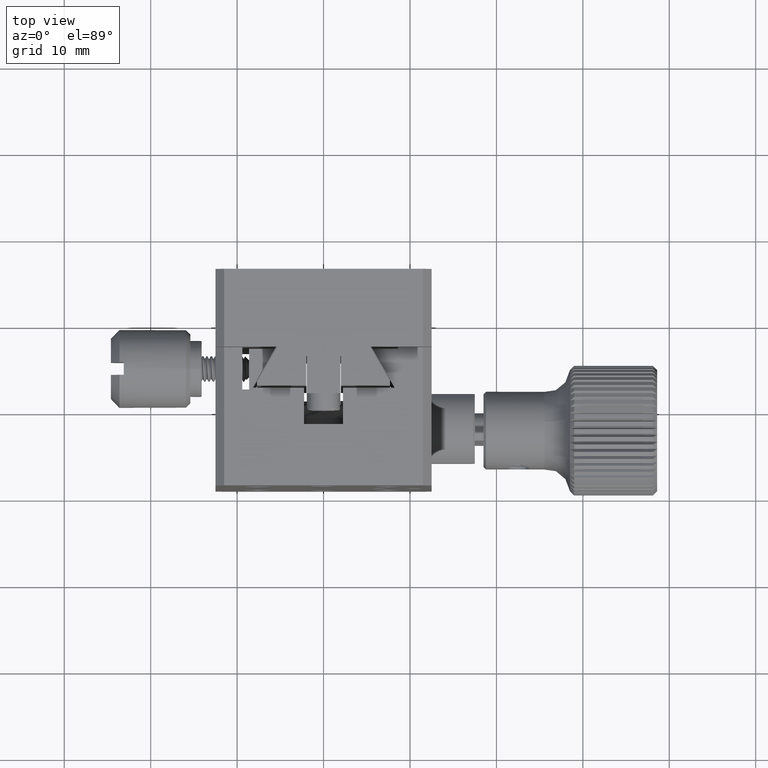
[diagram: clean part render]
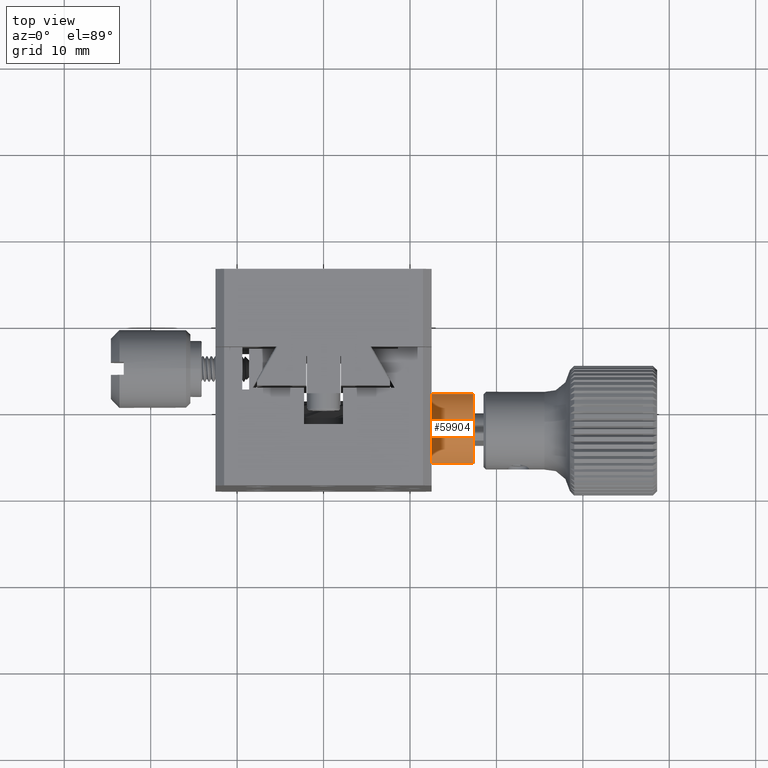
[diagram: same view with one face highlighted and labeled with its STEP entity id]
A machine part, top view. The second image highlights one B-rep face of the part: STEP entity #59904.
In plain terms, the highlighted cylindrical surface (partial cylindrical patch) has radius 4.5 mm, axis along (-1, -0, -0).
Its self-contained STEP definition (entity closure, byte-faithful):
#3530 = ORIENTED_EDGE ( 'NONE', *, *, #66225, .F. ) ;
#4441 = ORIENTED_EDGE ( 'NONE', *, *, #58777, .T. ) ;
#11947 = DIRECTION ( 'NONE',  ( 1.000000000000000000, 6.622260067737094707E-14, -0.000000000000000000 ) ) ;
#16751 = EDGE_LOOP ( 'NONE', ( #17479, #68786, #3530, #4441 ) ) ;
#17479 = ORIENTED_EDGE ( 'NONE', *, *, #73841, .F. ) ;
#17776 = VERTEX_POINT ( 'NONE', #70567 ) ;
#21925 = CARTESIAN_POINT ( 'NONE',  ( 12.50000000000040323, 7.900000000000035882, 24.64461662145724929 ) ) ;
#23768 = DIRECTION ( 'NONE',  ( 6.630498619289126253E-14, -1.000000000000000000, -1.541976423090494647E-15 ) ) ;
#26355 = DIRECTION ( 'NONE',  ( -1.000000000000000000, -6.622260067737094707E-14, -3.120322559308883122E-17 ) ) ;
#28968 = DIRECTION ( 'NONE',  ( -1.000000000000000000, -6.622260067737094707E-14, -0.000000000000000000 ) ) ;
#30026 = CARTESIAN_POINT ( 'NONE',  ( 17.30000000003428795, 7.900000000000352962, 24.64461662145724929 ) ) ;
#30196 = CARTESIAN_POINT ( 'NONE',  ( 12.50000000000066613, 3.900000000000038991, 26.70616943426608003 ) ) ;
#39367 = VERTEX_POINT ( 'NONE', #102844 ) ;
#41776 = LINE ( 'NONE', #115302, #58366 ) ;
#48668 = AXIS2_PLACEMENT_3D ( 'NONE', #30026, #95407, #114073 ) ;
#50099 = LINE ( 'NONE', #30196, #102515 ) ;
#51766 = DIRECTION ( 'NONE',  ( 1.000000000000000000, 6.622260067737094707E-14, 3.120322559308883122E-17 ) ) ;
#55607 = DIRECTION ( 'NONE',  ( 6.630498619289126253E-14, -1.000000000000000000, 0.000000000000000000 ) ) ;
#58366 = VECTOR ( 'NONE', #11947, 1000.000000000000000 ) ;
#58777 = EDGE_CURVE ( 'NONE', #117443, #39367, #95579, .T. ) ;
#58801 = VERTEX_POINT ( 'NONE', #97858 ) ;
#59904 = ADVANCED_FACE ( 'NONE', ( #63110 ), #122212, .T. ) ;
#60620 = CARTESIAN_POINT ( 'NONE',  ( 12.50000000000013856, 11.90000000000004121, 26.70616943426606937 ) ) ;
#63110 = FACE_OUTER_BOUND ( 'NONE', #16751, .T. ) ;
#66225 = EDGE_CURVE ( 'NONE', #117443, #58801, #41776, .T. ) ;
#68786 = ORIENTED_EDGE ( 'NONE', *, *, #69748, .F. ) ;
#69748 = EDGE_CURVE ( 'NONE', #58801, #17776, #112273, .T. ) ;
#70567 = CARTESIAN_POINT ( 'NONE',  ( 17.30000000003455085, 3.900000000000356071, 26.70616943427295098 ) ) ;
#73841 = EDGE_CURVE ( 'NONE', #17776, #39367, #50099, .T. ) ;
#95407 = DIRECTION ( 'NONE',  ( 1.000000000000000000, 6.622260067737094707E-14, 3.120322559308883122E-17 ) ) ;
#95579 = CIRCLE ( 'NONE', #103743, 4.500000000000001776 ) ;
#97858 = CARTESIAN_POINT ( 'NONE',  ( 17.30000000003717275, 11.90000000000035740, 26.70616943427294387 ) ) ;
#101084 = CARTESIAN_POINT ( 'NONE',  ( 17.50000000000040146, 7.900000000000367173, 24.64461662145724929 ) ) ;
#101785 = AXIS2_PLACEMENT_3D ( 'NONE', #101084, #26355, #55607 ) ;
#102515 = VECTOR ( 'NONE', #28968, 1000.000000000000000 ) ;
#102844 = CARTESIAN_POINT ( 'NONE',  ( 12.50000000000066613, 3.900000000000038547, 26.70616943426608358 ) ) ;
#103743 = AXIS2_PLACEMENT_3D ( 'NONE', #21925, #51766, #23768 ) ;
#112273 = CIRCLE ( 'NONE', #48668, 4.500000000006297185 ) ;
#114073 = DIRECTION ( 'NONE',  ( 0.000000000000000000, -1.541976423088337310E-15, -1.000000000000000000 ) ) ;
#115302 = CARTESIAN_POINT ( 'NONE',  ( 12.50000000000013856, 11.90000000000004121, 26.70616943426606937 ) ) ;
#117443 = VERTEX_POINT ( 'NONE', #60620 ) ;
#122212 = CYLINDRICAL_SURFACE ( 'NONE', #101785, 4.500000000000001776 ) ;